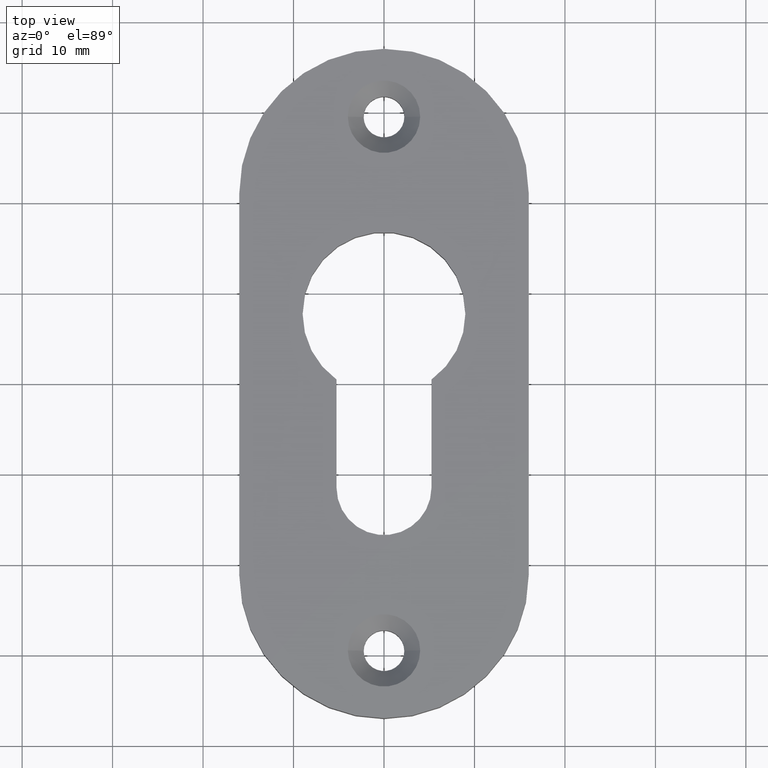
[diagram: clean part render]
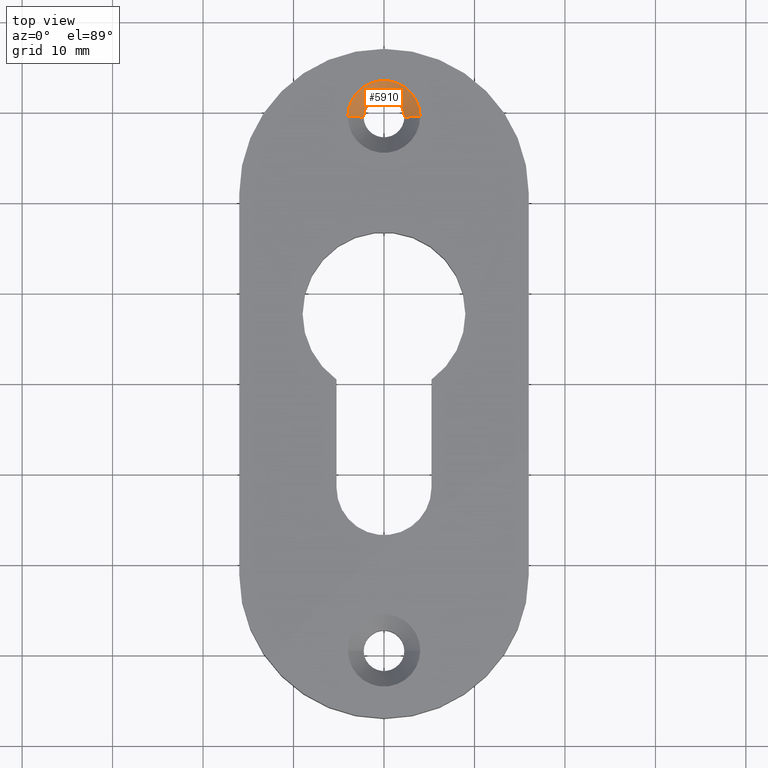
[diagram: same view with one face highlighted and labeled with its STEP entity id]
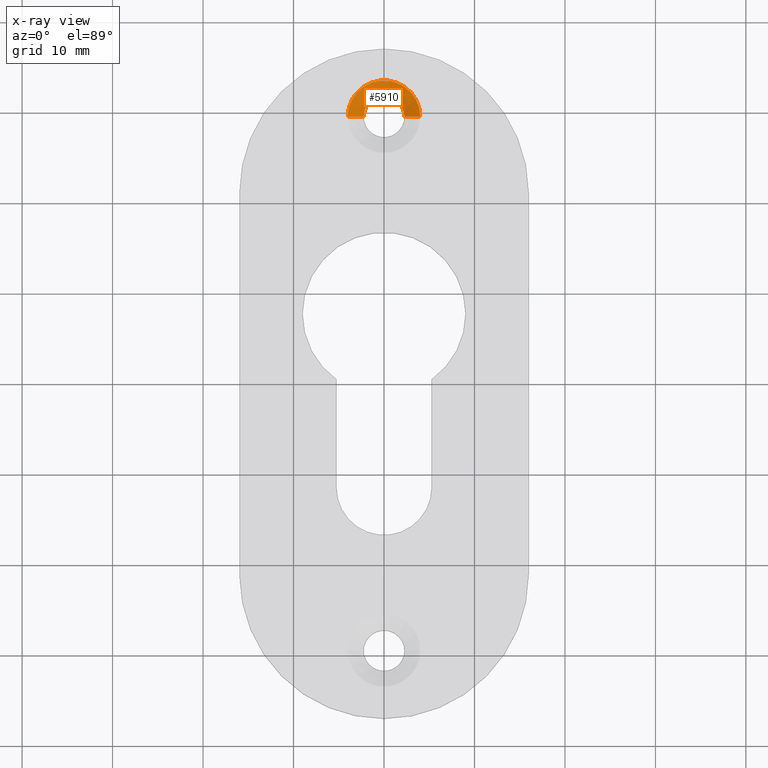
[diagram: x-ray of the same camera — body ghosted, the highlighted face saturated]
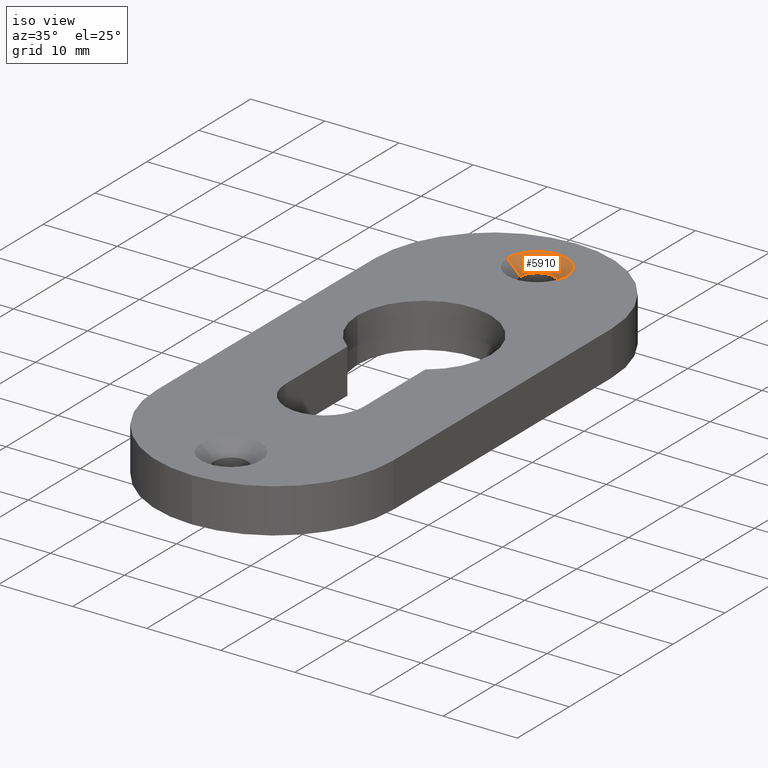
[diagram: same view with one face highlighted and labeled with its STEP entity id]
A machine part, top view. The second image highlights one B-rep face of the part: STEP entity #5910.
The next image is the same camera in x-ray: the body ghosted, the highlighted face saturated — about 0% of this face is hidden behind the body in this view.
A second angle (iso view) of the same face is appended — the face is thin or edge-on in the first view.
In plain terms, the highlighted conical surface has half-angle 45 deg.
Its self-contained STEP definition (entity closure, byte-faithful):
#15 = EDGE_CURVE ( 'NONE', #9957, #5316, #8439, .T. ) ;
#152 = VECTOR ( 'NONE', #4295, 1000.000000000000000 ) ;
#480 = VECTOR ( 'NONE', #4729, 1000.000000000000000 ) ;
#2676 = EDGE_LOOP ( 'NONE', ( #6046, #6665, #3319, #6104 ) ) ;
#2807 = EDGE_CURVE ( 'NONE', #8984, #9957, #9698, .T. ) ;
#2840 = CIRCLE ( 'NONE', #6698, 2.250000000000000900 ) ;
#2964 = CARTESIAN_POINT ( 'NONE',  ( 0.0000000000000000000, 29.50000000000000000, 6.000000000000000000 ) ) ;
#3319 = ORIENTED_EDGE ( 'NONE', *, *, #5644, .T. ) ;
#3400 = CARTESIAN_POINT ( 'NONE',  ( 0.0000000000000000000, 29.50000000000000000, 4.250000000000003600 ) ) ;
#3922 = DIRECTION ( 'NONE',  ( 0.0000000000000000000, 0.0000000000000000000, 1.000000000000000000 ) ) ;
#4071 = DIRECTION ( 'NONE',  ( 1.000000000000000000, 0.0000000000000000000, 0.0000000000000000000 ) ) ;
#4295 = DIRECTION ( 'NONE',  ( -0.7071067811865489100, 8.659560562354948900E-017, 0.7071067811865462400 ) ) ;
#4729 = DIRECTION ( 'NONE',  ( 0.7071067811865489100, 0.0000000000000000000, 0.7071067811865462400 ) ) ;
#4823 = CARTESIAN_POINT ( 'NONE',  ( 0.0000000000000000000, 29.50000000000000000, 4.250000000000003600 ) ) ;
#4929 = LINE ( 'NONE', #8810, #480 ) ;
#4962 = AXIS2_PLACEMENT_3D ( 'NONE', #2964, #9590, #5518 ) ;
#5316 = VERTEX_POINT ( 'NONE', #9001 ) ;
#5518 = DIRECTION ( 'NONE',  ( 1.000000000000000000, 0.0000000000000000000, 0.0000000000000000000 ) ) ;
#5644 = EDGE_CURVE ( 'NONE', #6848, #5316, #4929, .T. ) ;
#5910 = ADVANCED_FACE ( 'NONE', ( #8761 ), #7850, .F. ) ;
#6046 = ORIENTED_EDGE ( 'NONE', *, *, #2807, .F. ) ;
#6104 = ORIENTED_EDGE ( 'NONE', *, *, #15, .F. ) ;
#6397 = CARTESIAN_POINT ( 'NONE',  ( -2.250000000000000900, 29.50000000000000000, 4.250000000000003600 ) ) ;
#6665 = ORIENTED_EDGE ( 'NONE', *, *, #9458, .F. ) ;
#6698 = AXIS2_PLACEMENT_3D ( 'NONE', #3400, #10057, #9124 ) ;
#6848 = VERTEX_POINT ( 'NONE', #8667 ) ;
#7148 = AXIS2_PLACEMENT_3D ( 'NONE', #4823, #3922, #4071 ) ;
#7850 = CONICAL_SURFACE ( 'NONE', #7148, 2.250000000000000900, 0.7853981633974501700 ) ;
#8439 = CIRCLE ( 'NONE', #4962, 4.000000000000003600 ) ;
#8667 = CARTESIAN_POINT ( 'NONE',  ( 2.250000000000000900, 29.50000000000000000, 4.250000000000003600 ) ) ;
#8761 = FACE_OUTER_BOUND ( 'NONE', #2676, .T. ) ;
#8810 = CARTESIAN_POINT ( 'NONE',  ( 2.250000000000000900, 29.50000000000000000, 4.250000000000003600 ) ) ;
#8984 = VERTEX_POINT ( 'NONE', #6397 ) ;
#9001 = CARTESIAN_POINT ( 'NONE',  ( 4.000000000000003600, 29.50000000000000000, 6.000000000000000000 ) ) ;
#9124 = DIRECTION ( 'NONE',  ( 1.000000000000000000, 0.0000000000000000000, 0.0000000000000000000 ) ) ;
#9194 = CARTESIAN_POINT ( 'NONE',  ( -2.250000000000000900, 29.50000000000000000, 4.250000000000003600 ) ) ;
#9284 = CARTESIAN_POINT ( 'NONE',  ( -4.000000000000003600, 29.50000000000000000, 6.000000000000000000 ) ) ;
#9458 = EDGE_CURVE ( 'NONE', #6848, #8984, #2840, .T. ) ;
#9590 = DIRECTION ( 'NONE',  ( 0.0000000000000000000, -0.0000000000000000000, -1.000000000000000000 ) ) ;
#9698 = LINE ( 'NONE', #9194, #152 ) ;
#9957 = VERTEX_POINT ( 'NONE', #9284 ) ;
#10057 = DIRECTION ( 'NONE',  ( 0.0000000000000000000, 0.0000000000000000000, 1.000000000000000000 ) ) ;